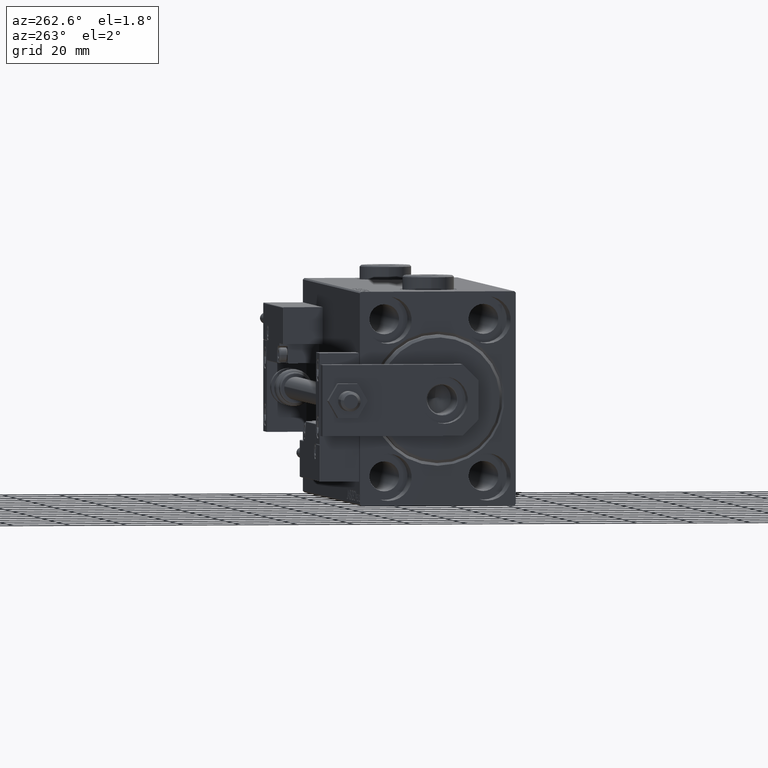
[diagram: clean part render]
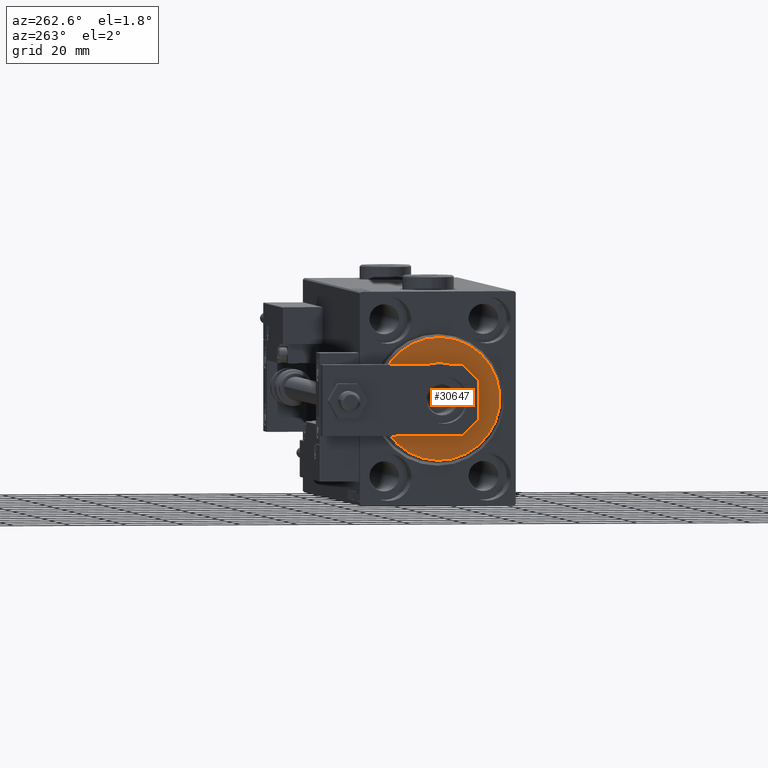
[diagram: same view with one face highlighted and labeled with its STEP entity id]
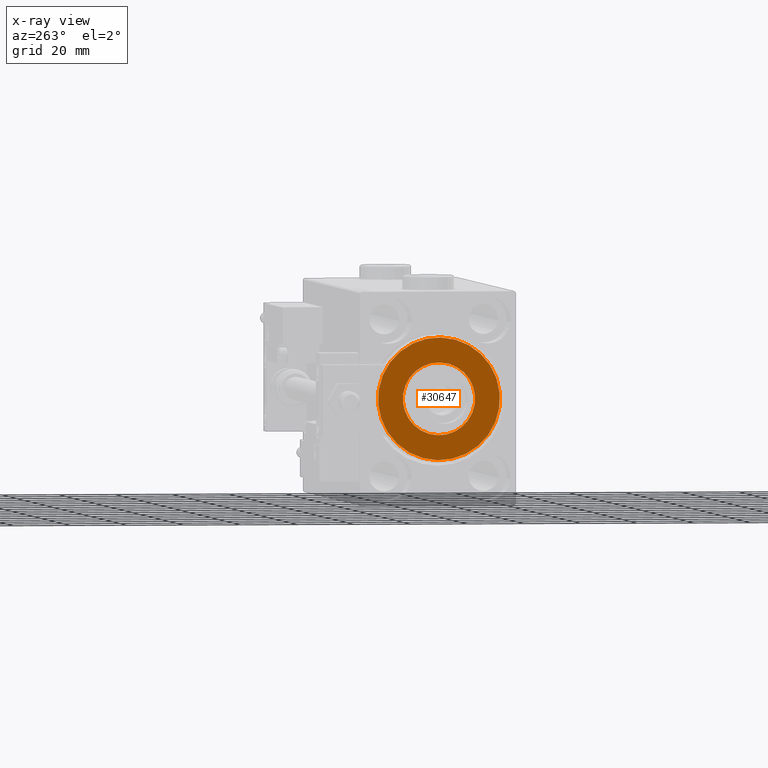
[diagram: x-ray of the same camera — body ghosted, the highlighted face saturated]
A machine part, auxiliary view. The second image highlights one B-rep face of the part: STEP entity #30647.
The next image is the same camera in x-ray: the body ghosted, the highlighted face saturated — about 0% of this face is hidden behind the body in this view.
In plain terms, the highlighted planar face has unit normal (-1, 0, 0).
Its self-contained STEP definition (entity closure, byte-faithful):
#433 = ORIENTED_EDGE ( 'NONE', *, *, #21556, .T. ) ;
#1046 = CIRCLE ( 'NONE', #48486, 21.50000000000000355 ) ;
#1051 = CARTESIAN_POINT ( 'NONE',  ( 3.000000000000000000, 0.000000000000000000, 0.000000000000000000 ) ) ;
#3810 = DIRECTION ( 'NONE',  ( 0.000000000000000000, 0.000000000000000000, -1.000000000000000000 ) ) ;
#7543 = VERTEX_POINT ( 'NONE', #32979 ) ;
#10049 = FACE_OUTER_BOUND ( 'NONE', #42104, .T. ) ;
#12031 = AXIS2_PLACEMENT_3D ( 'NONE', #38467, #25962, #43679 ) ;
#12079 = CARTESIAN_POINT ( 'NONE',  ( 3.000000000000000000, 0.000000000000000000, 0.000000000000000000 ) ) ;
#13756 = ORIENTED_EDGE ( 'NONE', *, *, #23060, .T. ) ;
#15117 = AXIS2_PLACEMENT_3D ( 'NONE', #1051, #36503, #28928 ) ;
#17230 = CARTESIAN_POINT ( 'NONE',  ( 3.000000000000000000, 0.000000000000000000, 12.75000000000000000 ) ) ;
#17313 = AXIS2_PLACEMENT_3D ( 'NONE', #12079, #20923, #39702 ) ;
#18124 = CIRCLE ( 'NONE', #17313, 21.50000000000000355 ) ;
#20923 = DIRECTION ( 'NONE',  ( 1.000000000000000000, -0.000000000000000000, 0.000000000000000000 ) ) ;
#20955 = CIRCLE ( 'NONE', #15117, 12.75000000000000000 ) ;
#21556 = EDGE_CURVE ( 'NONE', #43365, #47245, #20955, .T. ) ;
#22048 = FACE_BOUND ( 'NONE', #33077, .T. ) ;
#23060 = EDGE_CURVE ( 'NONE', #7543, #45462, #1046, .T. ) ;
#23961 = CARTESIAN_POINT ( 'NONE',  ( 3.000000000000000000, 0.000000000000000000, 0.000000000000000000 ) ) ;
#24745 = ORIENTED_EDGE ( 'NONE', *, *, #49118, .T. ) ;
#25962 = DIRECTION ( 'NONE',  ( 1.000000000000000000, -0.000000000000000000, 0.000000000000000000 ) ) ;
#28928 = DIRECTION ( 'NONE',  ( 0.000000000000000000, 0.000000000000000000, -1.000000000000000000 ) ) ;
#29686 = CIRCLE ( 'NONE', #38017, 12.75000000000000000 ) ;
#30647 = ADVANCED_FACE ( 'NONE', ( #10049, #22048 ), #42121, .T. ) ;
#31508 = DIRECTION ( 'NONE',  ( 0.000000000000000000, 0.000000000000000000, -1.000000000000000000 ) ) ;
#32979 = CARTESIAN_POINT ( 'NONE',  ( 3.000000000000000000, 2.694222958124177598E-15, -21.50000000000000355 ) ) ;
#33077 = EDGE_LOOP ( 'NONE', ( #34105, #433 ) ) ;
#34105 = ORIENTED_EDGE ( 'NONE', *, *, #37328, .T. ) ;
#35421 = DIRECTION ( 'NONE',  ( 1.000000000000000000, -0.000000000000000000, 0.000000000000000000 ) ) ;
#35601 = DIRECTION ( 'NONE',  ( -1.000000000000000000, 0.000000000000000000, -0.000000000000000000 ) ) ;
#36503 = DIRECTION ( 'NONE',  ( -1.000000000000000000, 0.000000000000000000, -0.000000000000000000 ) ) ;
#37328 = EDGE_CURVE ( 'NONE', #47245, #43365, #29686, .T. ) ;
#38017 = AXIS2_PLACEMENT_3D ( 'NONE', #47332, #35601, #3810 ) ;
#38467 = CARTESIAN_POINT ( 'NONE',  ( 3.000000000000000000, 0.000000000000000000, 0.000000000000000000 ) ) ;
#39702 = DIRECTION ( 'NONE',  ( 0.000000000000000000, 0.000000000000000000, -1.000000000000000000 ) ) ;
#42104 = EDGE_LOOP ( 'NONE', ( #24745, #13756 ) ) ;
#42121 = PLANE ( 'NONE',  #12031 ) ;
#43365 = VERTEX_POINT ( 'NONE', #45633 ) ;
#43679 = DIRECTION ( 'NONE',  ( 0.000000000000000000, 0.000000000000000000, -1.000000000000000000 ) ) ;
#45462 = VERTEX_POINT ( 'NONE', #47807 ) ;
#45633 = CARTESIAN_POINT ( 'NONE',  ( 3.000000000000000000, 1.561424668912874914E-15, -12.75000000000000000 ) ) ;
#47245 = VERTEX_POINT ( 'NONE', #17230 ) ;
#47332 = CARTESIAN_POINT ( 'NONE',  ( 3.000000000000000000, 0.000000000000000000, 0.000000000000000000 ) ) ;
#47807 = CARTESIAN_POINT ( 'NONE',  ( 3.000000000000000000, 0.000000000000000000, 21.50000000000000355 ) ) ;
#48486 = AXIS2_PLACEMENT_3D ( 'NONE', #23961, #35421, #31508 ) ;
#49118 = EDGE_CURVE ( 'NONE', #45462, #7543, #18124, .T. ) ;